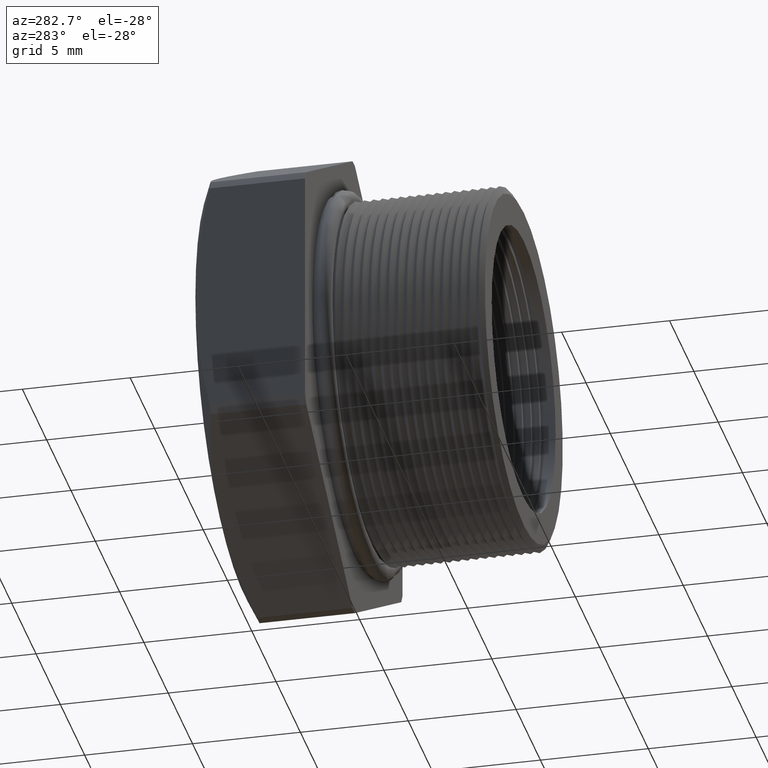
[diagram: clean part render]
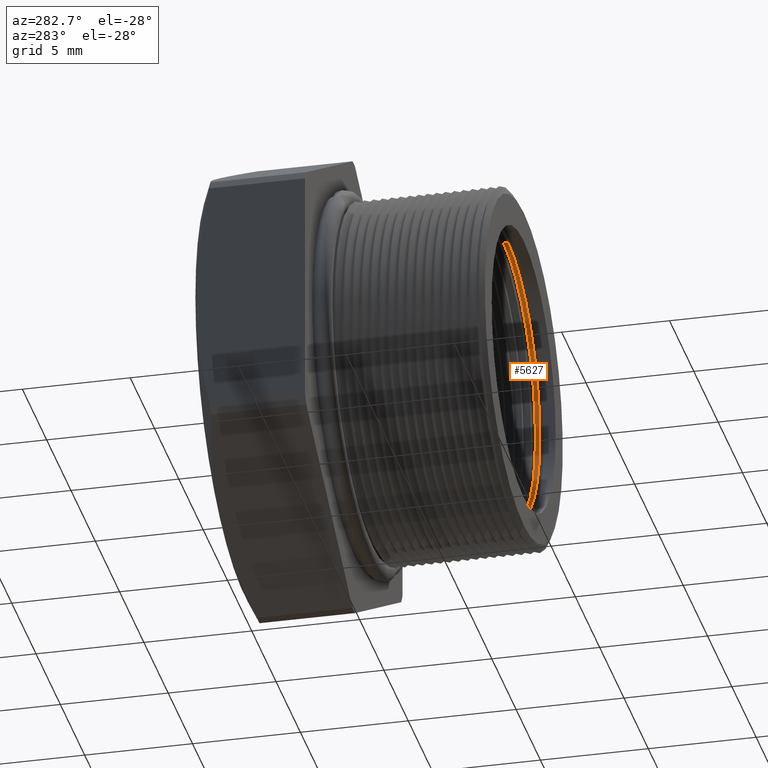
[diagram: same view with one face highlighted and labeled with its STEP entity id]
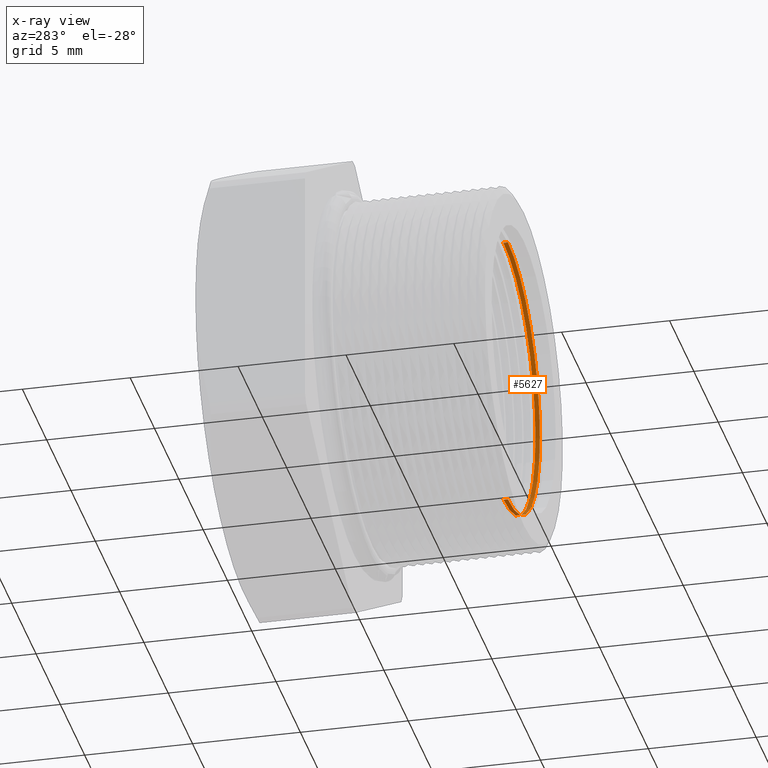
[diagram: x-ray of the same camera — body ghosted, the highlighted face saturated]
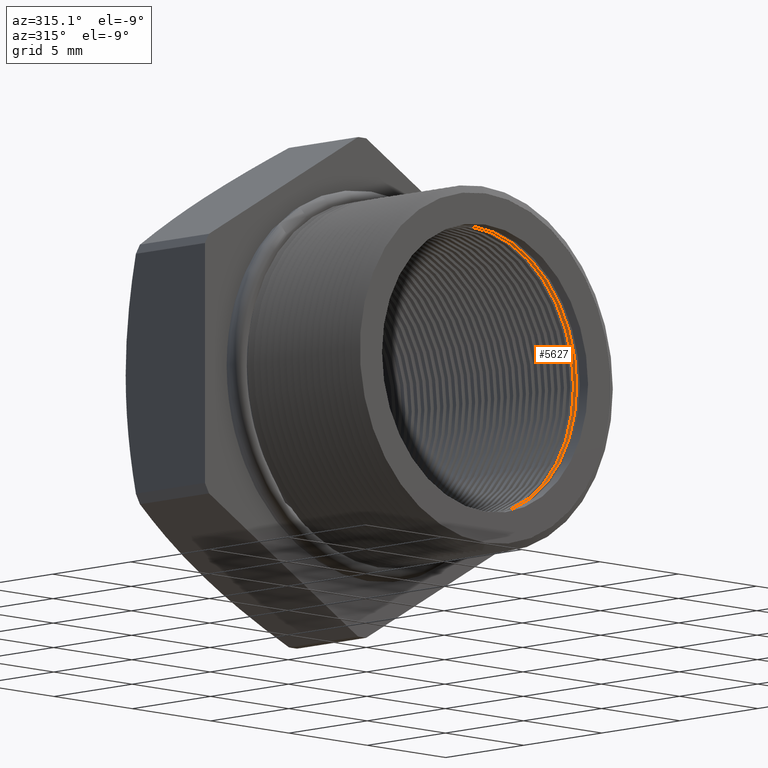
[diagram: same view with one face highlighted and labeled with its STEP entity id]
A machine part, auxiliary view. The second image highlights one B-rep face of the part: STEP entity #5627.
The next image is the same camera in x-ray: the body ghosted, the highlighted face saturated — about 4% of this face is hidden behind the body in this view.
A second angle (auxiliary view) of the same face is appended — the face is thin or edge-on in the first view.
In plain terms, the highlighted cylindrical surface (partial cylindrical patch) has radius 6.5783 mm, axis along (-0, -1, -0).
Its self-contained STEP definition (entity closure, byte-faithful):
#1707 = DIRECTION ( 'NONE',  ( -0.0000000000000000000, -1.000000000000000000, -0.0000000000000000000 ) ) ;
#1708 = VECTOR ( 'NONE', #1707, 39.37007874015748100 ) ;
#1709 = CARTESIAN_POINT ( 'NONE',  ( 0.0000000000000000000, 0.0000000000000000000, -0.2589880461203001900 ) ) ;
#1710 = LINE ( 'NONE', #1709, #1708 ) ;
#1711 = DIRECTION ( 'NONE',  ( -0.0000000000000000000, -1.000000000000000000, -0.0000000000000000000 ) ) ;
#1712 = VECTOR ( 'NONE', #1711, 39.37007874015748100 ) ;
#1713 = CARTESIAN_POINT ( 'NONE',  ( 3.171688816986526800E-017, 0.0000000000000000000, 0.2589880461203001900 ) ) ;
#1714 = LINE ( 'NONE', #1713, #1712 ) ;
#2019 = DIRECTION ( 'NONE',  ( 0.0000000000000000000, 0.0000000000000000000, -1.000000000000000000 ) ) ;
#2020 = DIRECTION ( 'NONE',  ( -0.0000000000000000000, 1.000000000000000000, -0.0000000000000000000 ) ) ;
#2021 = CARTESIAN_POINT ( 'NONE',  ( 0.0000000000000000000, -0.07367803464295398500, 0.0000000000000000000 ) ) ;
#2022 = AXIS2_PLACEMENT_3D ( 'NONE', #2021, #2020, #2019 ) ;
#2023 = CIRCLE ( 'NONE', #2022, 0.2589880461203001900 ) ;
#2032 = CARTESIAN_POINT ( 'NONE',  ( 0.0000000000000000000, 0.0000000000000000000, 0.0000000000000000000 ) ) ;
#2033 = AXIS2_PLACEMENT_3D ( 'NONE', #2032, #2082, #2081 ) ;
#2034 = CYLINDRICAL_SURFACE ( 'NONE', #2033, 0.2589880461203001900 ) ;
#2035 = FACE_OUTER_BOUND ( 'NONE', #5628, .T. ) ;
#2076 = DIRECTION ( 'NONE',  ( 0.0000000000000000000, 0.0000000000000000000, 1.000000000000000000 ) ) ;
#2077 = DIRECTION ( 'NONE',  ( 0.0000000000000000000, -1.000000000000000000, 0.0000000000000000000 ) ) ;
#2078 = CARTESIAN_POINT ( 'NONE',  ( 0.0000000000000000000, -0.06564985187378077900, 0.0000000000000000000 ) ) ;
#2079 = AXIS2_PLACEMENT_3D ( 'NONE', #2078, #2077, #2076 ) ;
#2080 = CIRCLE ( 'NONE', #2079, 0.2589880461203001900 ) ;
#2081 = DIRECTION ( 'NONE',  ( 0.0000000000000000000, 0.0000000000000000000, -1.000000000000000000 ) ) ;
#2082 = DIRECTION ( 'NONE',  ( -0.0000000000000000000, -1.000000000000000000, -0.0000000000000000000 ) ) ;
#3300 = CARTESIAN_POINT ( 'NONE',  ( 3.171688816986526800E-017, -0.07367803464295398500, 0.2589880461203001900 ) ) ;
#3802 = CARTESIAN_POINT ( 'NONE',  ( 0.0000000000000000000, -0.07367803464295398500, -0.2589880461203001900 ) ) ;
#4094 = VERTEX_POINT ( 'NONE', #7110 ) ;
#4095 = VERTEX_POINT ( 'NONE', #7109 ) ;
#5473 = EDGE_CURVE ( 'NONE', #4095, #6437, #1714, .T. ) ;
#5476 = EDGE_CURVE ( 'NONE', #4094, #6881, #1710, .T. ) ;
#5609 = ORIENTED_EDGE ( 'NONE', *, *, #5610, .F. ) ;
#5610 = EDGE_CURVE ( 'NONE', #6437, #6881, #2023, .T. ) ;
#5627 = ADVANCED_FACE ( 'NONE', ( #2035 ), #2034, .F. ) ;
#5628 = EDGE_LOOP ( 'NONE', ( #5629, #5630, #5632, #5609 ) ) ;
#5629 = ORIENTED_EDGE ( 'NONE', *, *, #5473, .F. ) ;
#5630 = ORIENTED_EDGE ( 'NONE', *, *, #5631, .F. ) ;
#5631 = EDGE_CURVE ( 'NONE', #4094, #4095, #2080, .T. ) ;
#5632 = ORIENTED_EDGE ( 'NONE', *, *, #5476, .T. ) ;
#6437 = VERTEX_POINT ( 'NONE', #3300 ) ;
#6881 = VERTEX_POINT ( 'NONE', #3802 ) ;
#7109 = CARTESIAN_POINT ( 'NONE',  ( 3.171688816986526800E-017, -0.06564985187378077900, 0.2589880461203001900 ) ) ;
#7110 = CARTESIAN_POINT ( 'NONE',  ( 0.0000000000000000000, -0.06564985187378077900, -0.2589880461203001900 ) ) ;